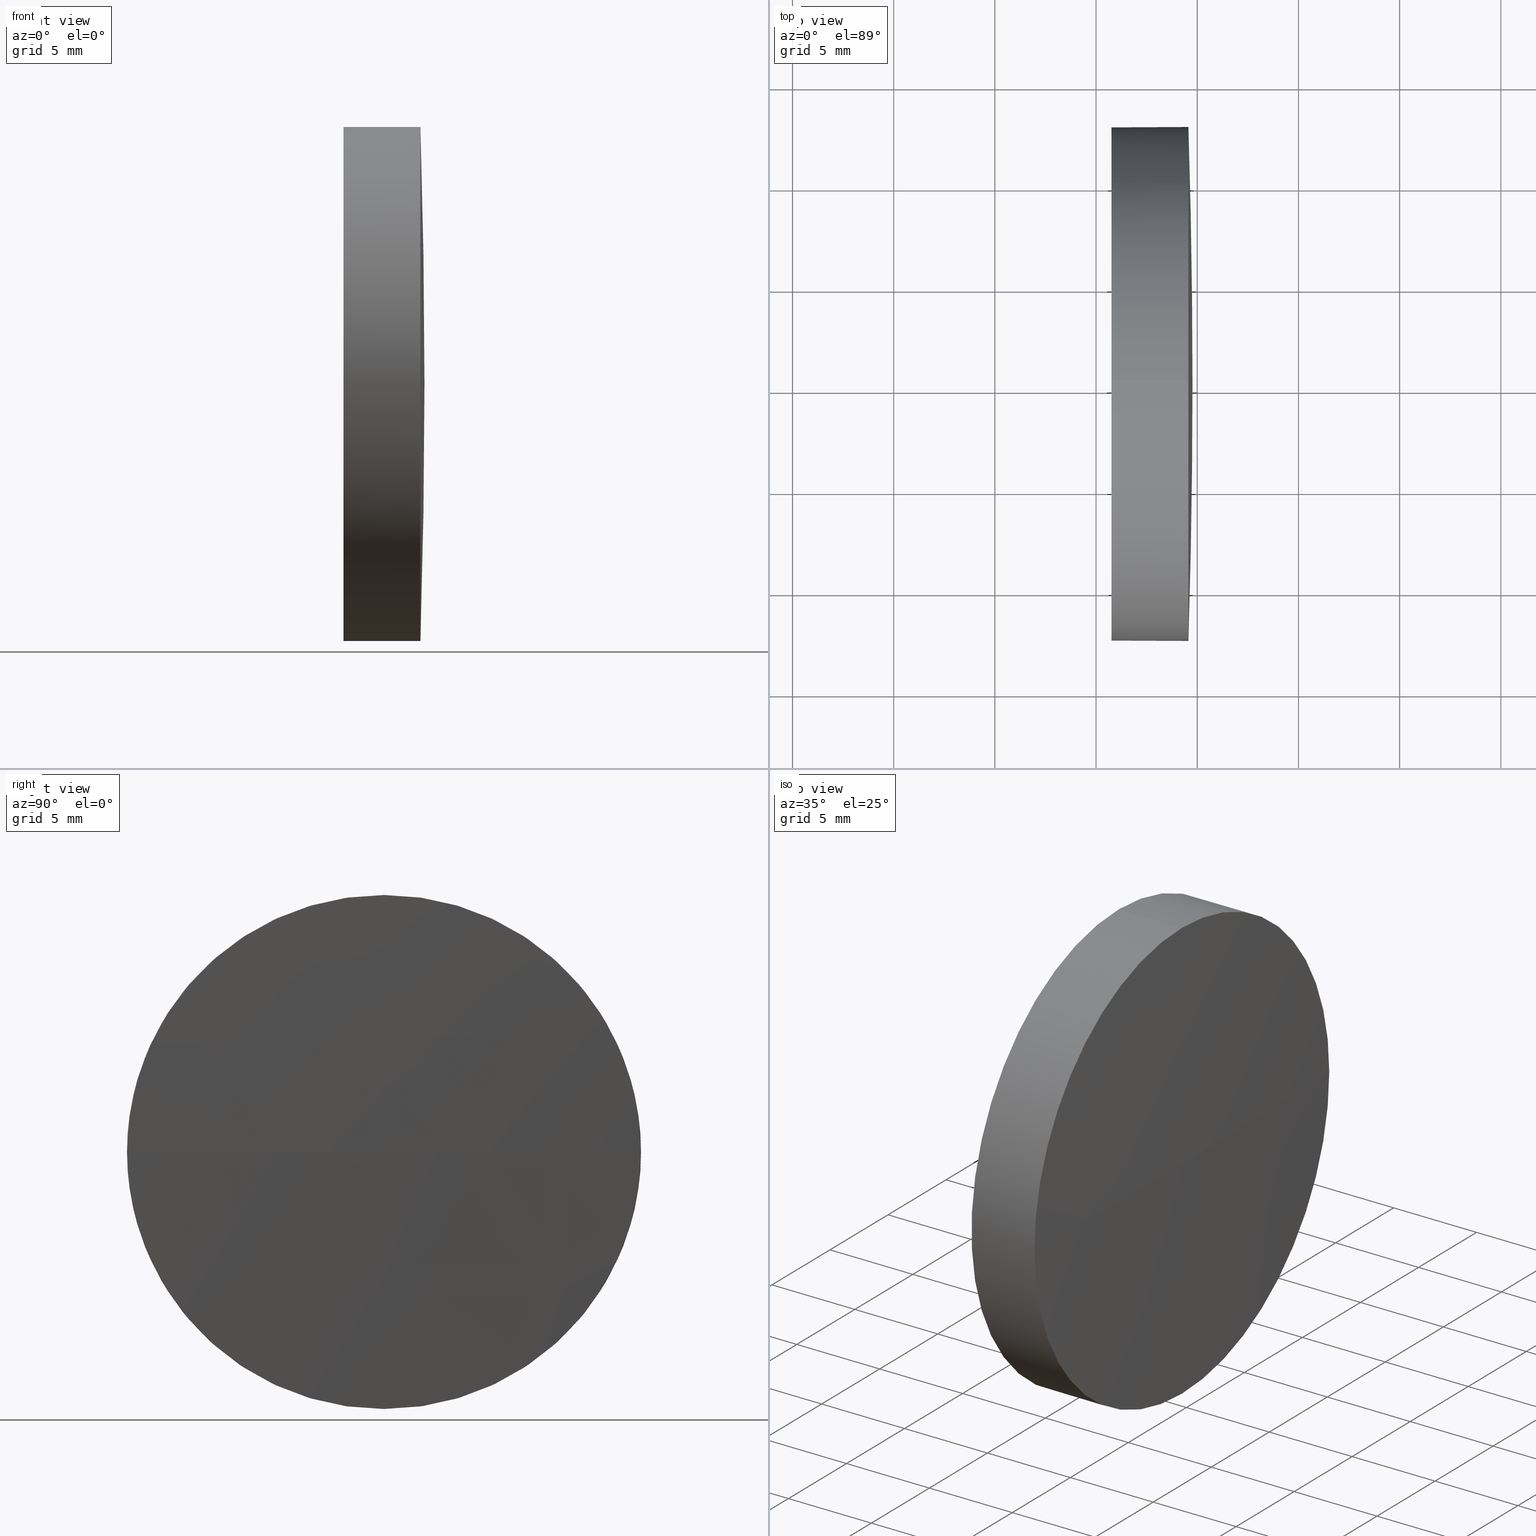
[diagram: canonical four-view strip — front | top / right | iso, engineering-drawing reading convention]
A machine part, canonical four-view strip (front | top / right | iso — engineering-drawing reading convention). The complete STEP part file that produces these views, byte-faithful:
ISO-10303-21;
HEADER;
FILE_DESCRIPTION (( 'STEP AP214' ),
    '1' );
FILE_NAME ('100519.STEP',
    '2019-06-13T02:14:47',
    ( '' ),
    ( '' ),
    'SwSTEP 2.0',
    'SolidWorks 2016',
    '' );
FILE_SCHEMA (( 'AUTOMOTIVE_DESIGN' ));
ENDSEC;

DATA;
#1 = FACE_OUTER_BOUND ( 'NONE', #17, .T. ) ;
#2 = ORIENTED_EDGE ( 'NONE', *, *, #42, .T. ) ;
#3 = VERTEX_POINT ( 'NONE', #48 ) ;
#4 = SHAPE_DEFINITION_REPRESENTATION ( #144, #142 ) ;
#5 = UNCERTAINTY_MEASURE_WITH_UNIT (LENGTH_MEASURE( 1.000000000000000100E-005 ), #15, 'distance_accuracy_value', 'NONE');
#6 = ORIENTED_EDGE ( 'NONE', *, *, #71, .F. ) ;
#7 = EDGE_CURVE ( 'NONE', #165, #3, #10, .T. ) ;
#8 = DIRECTION ( 'NONE',  ( 0.0000000000000000000, 0.0000000000000000000, 1.000000000000000000 ) ) ;
#9 = FILL_AREA_STYLE_COLOUR ( '', #97 ) ;
#10 = CIRCLE ( 'NONE', #179, 12.70000000000000300 ) ;
#11 = APPLICATION_PROTOCOL_DEFINITION ( 'draft international standard', 'automotive_design', 1998, #101 ) ;
#12 = ORIENTED_EDGE ( 'NONE', *, *, #96, .F. ) ;
#13 = SURFACE_STYLE_USAGE ( .BOTH. , #160 ) ;
#14 = EDGE_LOOP ( 'NONE', ( #69, #184, #126, #66 ) ) ;
#15 =( LENGTH_UNIT ( ) NAMED_UNIT ( * ) SI_UNIT ( .MILLI., .METRE. ) );
#16 = COLOUR_RGB ( '',1.000000000000000000, 1.000000000000000000, 1.000000000000000000 ) ;
#17 = EDGE_LOOP ( 'NONE', ( #132, #178, #114, #60, #51 ) ) ;
#18 = VERTEX_POINT ( 'NONE', #138 ) ;
#19 = AXIS2_PLACEMENT_3D ( 'NONE', #123, #135, #166 ) ;
#20 = FACE_OUTER_BOUND ( 'NONE', #29, .T. ) ;
#21 = ADVANCED_FACE ( 'NONE', ( #20 ), #38, .T. ) ;
#22 = PRODUCT ( '100519', '100519', '', ( #79 ) ) ;
#23 = DIRECTION ( 'NONE',  ( 0.0000000000000000000, 0.0000000000000000000, 1.000000000000000000 ) ) ;
#24 = FACE_OUTER_BOUND ( 'NONE', #49, .T. ) ;
#25 = FILL_AREA_STYLE ('',( #9 ) ) ;
#26 = FILL_AREA_STYLE ('',( #112 ) ) ;
#27 = CARTESIAN_POINT ( 'NONE',  ( 110.1653732284884500, 65.23355492641219700, 0.0000000000000000000 ) ) ;
#28 = DIRECTION ( 'NONE',  ( 0.0000000000000000000, 0.0000000000000000000, 1.000000000000000000 ) ) ;
#29 = EDGE_LOOP ( 'NONE', ( #12, #2, #95, #104, #6 ) ) ;
#30 = DIRECTION ( 'NONE',  ( -1.000000000000000000, -0.0000000000000000000, -0.0000000000000000000 ) ) ;
#31 = DIRECTION ( 'NONE',  ( -1.000000000000000000, -0.0000000000000000000, -0.0000000000000000000 ) ) ;
#32 = DIRECTION ( 'NONE',  ( 0.0000000000000000000, 0.0000000000000000000, 1.000000000000000000 ) ) ;
#33 = ORIENTED_EDGE ( 'NONE', *, *, #151, .T. ) ;
#34 = VERTEX_POINT ( 'NONE', #182 ) ;
#35 = MECHANICAL_DESIGN_GEOMETRIC_PRESENTATION_REPRESENTATION (  '', ( #99 ), #47 ) ;
#36 = SURFACE_STYLE_FILL_AREA ( #26 ) ;
#37 = CLOSED_SHELL ( 'NONE', ( #94, #155, #39, #21, #92 ) ) ;
#38 = CYLINDRICAL_SURFACE ( 'NONE', #19, 12.70000000000000300 ) ;
#39 = ADVANCED_FACE ( 'NONE', ( #152 ), #134, .T. ) ;
#40 = UNCERTAINTY_MEASURE_WITH_UNIT (LENGTH_MEASURE( 1.000000000000000100E-005 ), #74, 'distance_accuracy_value', 'NONE');
#41 = VERTEX_POINT ( 'NONE', #136 ) ;
#42 = EDGE_CURVE ( 'NONE', #34, #165, #146, .T. ) ;
#43 = PRODUCT_DEFINITION_CONTEXT ( 'detailed design', #145, 'design' ) ;
#44 = DIRECTION ( 'NONE',  ( -1.000000000000000000, -0.0000000000000000000, -0.0000000000000000000 ) ) ;
#45 = EDGE_CURVE ( 'NONE', #3, #154, #54, .T. ) ;
#46 = CARTESIAN_POINT ( 'NONE',  ( 119.5645554762011900, 65.23355492641219700, 0.0000000000000000000 ) ) ;
#47 =( GEOMETRIC_REPRESENTATION_CONTEXT ( 3 ) GLOBAL_UNCERTAINTY_ASSIGNED_CONTEXT ( ( #40 ) ) GLOBAL_UNIT_ASSIGNED_CONTEXT ( ( #74, #185, #98 ) ) REPRESENTATION_CONTEXT ( 'NONE', 'WORKASPACE' ) );
#48 = CARTESIAN_POINT ( 'NONE',  ( 119.5645554762011900, 65.23355492641219700, 12.70000000000000300 ) ) ;
#49 = EDGE_LOOP ( 'NONE', ( #55, #33, #91, #73 ) ) ;
#50 = DIRECTION ( 'NONE',  ( 0.0000000000000000000, 0.0000000000000000000, 1.000000000000000000 ) ) ;
#51 = ORIENTED_EDGE ( 'NONE', *, *, #80, .T. ) ;
#52 = AXIS2_PLACEMENT_3D ( 'NONE', #27, #87, #50 ) ;
#53 = CARTESIAN_POINT ( 'NONE',  ( -283.5604445238075800, 65.23355492641265100, 0.0000000000000000000 ) ) ;
#54 = LINE ( 'NONE', #108, #65 ) ;
#55 = ORIENTED_EDGE ( 'NONE', *, *, #167, .F. ) ;
#56 =( LENGTH_UNIT ( ) NAMED_UNIT ( * ) SI_UNIT ( .MILLI., .METRE. ) );
#57 = DIRECTION ( 'NONE',  ( 0.0000000000000000000, 0.0000000000000000000, -1.000000000000000000 ) ) ;
#58 = MANIFOLD_SOLID_BREP ( '��ת1', #37 ) ;
#59 = CARTESIAN_POINT ( 'NONE',  ( 115.7645554762012000, 65.23355492641219700, 0.0000000000000000000 ) ) ;
#60 = ORIENTED_EDGE ( 'NONE', *, *, #45, .F. ) ;
#61 = DIRECTION ( 'NONE',  ( 0.0000000000000000000, -1.000000000000000000, 0.0000000000000000000 ) ) ;
#62 = CIRCLE ( 'NONE', #89, 12.70000000000000300 ) ;
#63 = DIRECTION ( 'NONE',  ( 1.000000000000000000, 0.0000000000000000000, 0.0000000000000000000 ) ) ;
#64 =( GEOMETRIC_REPRESENTATION_CONTEXT ( 3 ) GLOBAL_UNCERTAINTY_ASSIGNED_CONTEXT ( ( #5 ) ) GLOBAL_UNIT_ASSIGNED_CONTEXT ( ( #15, #119, #147 ) ) REPRESENTATION_CONTEXT ( 'NONE', 'WORKASPACE' ) );
#65 = VECTOR ( 'NONE', #44, 1000.000000000000000 ) ;
#66 = ORIENTED_EDGE ( 'NONE', *, *, #163, .F. ) ;
#67 = ORIENTED_EDGE ( 'NONE', *, *, #71, .T. ) ;
#68 = ORIENTED_EDGE ( 'NONE', *, *, #70, .T. ) ;
#69 = ORIENTED_EDGE ( 'NONE', *, *, #151, .F. ) ;
#70 = EDGE_CURVE ( 'NONE', #154, #133, #90, .T. ) ;
#71 = EDGE_CURVE ( 'NONE', #133, #154, #117, .T. ) ;
#72 = LINE ( 'NONE', #77, #109 ) ;
#73 = ORIENTED_EDGE ( 'NONE', *, *, #7, .F. ) ;
#74 =( LENGTH_UNIT ( ) NAMED_UNIT ( * ) SI_UNIT ( .MILLI., .METRE. ) );
#75 =( NAMED_UNIT ( * ) SI_UNIT ( $, .STERADIAN. ) SOLID_ANGLE_UNIT ( ) );
#76 = CARTESIAN_POINT ( 'NONE',  ( -283.5604445238075800, 65.23355492641265100, 0.0000000000000000000 ) ) ;
#77 = CARTESIAN_POINT ( 'NONE',  ( 110.1653732284884500, 65.23355492641219700, -12.70000000000000300 ) ) ;
#78 = PRODUCT_RELATED_PRODUCT_CATEGORY ( 'part', '', ( #22 ) ) ;
#79 = PRODUCT_CONTEXT ( 'NONE', #101, 'mechanical' ) ;
#80 = EDGE_CURVE ( 'NONE', #3, #18, #174, .T. ) ;
#81 = AXIS2_PLACEMENT_3D ( 'NONE', #110, #183, #168 ) ;
#82 = PRESENTATION_LAYER_ASSIGNMENT (  '', '', ( #120 ) ) ;
#83 = PLANE ( 'NONE',  #153 ) ;
#84 = SURFACE_SIDE_STYLE ('',( #105 ) ) ;
#85 = DIRECTION ( 'NONE',  ( -1.000000000000000000, 0.0000000000000000000, 0.0000000000000000000 ) ) ;
#86 = DIRECTION ( 'NONE',  ( 0.0000000000000000000, 0.0000000000000000000, 1.000000000000000000 ) ) ;
#87 = DIRECTION ( 'NONE',  ( -1.000000000000000000, -0.0000000000000000000, -0.0000000000000000000 ) ) ;
#88 = CARTESIAN_POINT ( 'NONE',  ( -283.5604445238075800, 65.23355492641265100, 0.0000000000000000000 ) ) ;
#89 = AXIS2_PLACEMENT_3D ( 'NONE', #103, #172, #128 ) ;
#90 = CIRCLE ( 'NONE', #118, 12.70000000000000300 ) ;
#91 = ORIENTED_EDGE ( 'NONE', *, *, #80, .F. ) ;
#92 = ADVANCED_FACE ( 'NONE', ( #122 ), #83, .F. ) ;
#93 = CIRCLE ( 'NONE', #100, 403.3250000000088000 ) ;
#94 = ADVANCED_FACE ( 'NONE', ( #1 ), #181, .T. ) ;
#95 = ORIENTED_EDGE ( 'NONE', *, *, #7, .T. ) ;
#96 = EDGE_CURVE ( 'NONE', #34, #133, #72, .T. ) ;
#97 = COLOUR_RGB ( '',1.000000000000000000, 1.000000000000000000, 1.000000000000000000 ) ;
#98 =( NAMED_UNIT ( * ) SI_UNIT ( $, .STERADIAN. ) SOLID_ANGLE_UNIT ( ) );
#99 = STYLED_ITEM ( 'NONE', ( #169 ), #58 ) ;
#100 = AXIS2_PLACEMENT_3D ( 'NONE', #88, #115, #85 ) ;
#101 = APPLICATION_CONTEXT ( 'automotive_design' ) ;
#102 = CARTESIAN_POINT ( 'NONE',  ( 115.7645554762012000, 65.23355492641219700, 0.0000000000000000000 ) ) ;
#103 = CARTESIAN_POINT ( 'NONE',  ( 119.5645554762011900, 65.23355492641219700, 0.0000000000000000000 ) ) ;
#104 = ORIENTED_EDGE ( 'NONE', *, *, #45, .T. ) ;
#105 = SURFACE_STYLE_FILL_AREA ( #25 ) ;
#106 =( GEOMETRIC_REPRESENTATION_CONTEXT ( 3 ) GLOBAL_UNCERTAINTY_ASSIGNED_CONTEXT ( ( #161 ) ) GLOBAL_UNIT_ASSIGNED_CONTEXT ( ( #56, #158, #75 ) ) REPRESENTATION_CONTEXT ( 'NONE', 'WORKASPACE' ) );
#107 = DIRECTION ( 'NONE',  ( 0.0000000000000000000, -1.000000000000000000, 0.0000000000000000000 ) ) ;
#108 = CARTESIAN_POINT ( 'NONE',  ( 110.1653732284884500, 65.23355492641219700, 12.70000000000000300 ) ) ;
#109 = VECTOR ( 'NONE', #173, 1000.000000000000000 ) ;
#110 = CARTESIAN_POINT ( 'NONE',  ( 119.5645554762011900, 65.23355492641219700, 0.0000000000000000000 ) ) ;
#111 = SPHERICAL_SURFACE ( 'NONE', #159, 403.3250000000087400 ) ;
#112 = FILL_AREA_STYLE_COLOUR ( '', #16 ) ;
#113 = CARTESIAN_POINT ( 'NONE',  ( 119.5645554762011900, 65.23355492641219700, 0.0000000000000000000 ) ) ;
#114 = ORIENTED_EDGE ( 'NONE', *, *, #70, .F. ) ;
#115 = DIRECTION ( 'NONE',  ( 0.0000000000000000000, 0.0000000000000000000, -1.000000000000000000 ) ) ;
#116 = DIRECTION ( 'NONE',  ( 0.0000000000000000000, 0.0000000000000000000, 1.000000000000000000 ) ) ;
#117 = CIRCLE ( 'NONE', #148, 12.70000000000000300 ) ;
#118 = AXIS2_PLACEMENT_3D ( 'NONE', #141, #30, #116 ) ;
#119 =( NAMED_UNIT ( * ) PLANE_ANGLE_UNIT ( ) SI_UNIT ( $, .RADIAN. ) );
#120 = STYLED_ITEM ( 'NONE', ( #149 ), #142 ) ;
#121 = PRODUCT_DEFINITION_FORMATION_WITH_SPECIFIED_SOURCE ( '�κ�', '', #22, .NOT_KNOWN. ) ;
#122 = FACE_OUTER_BOUND ( 'NONE', #130, .T. ) ;
#123 = CARTESIAN_POINT ( 'NONE',  ( 110.1653732284884500, 65.23355492641219700, 0.0000000000000000000 ) ) ;
#124 = AXIS2_PLACEMENT_3D ( 'NONE', #53, #8, #107 ) ;
#125 = MECHANICAL_DESIGN_GEOMETRIC_PRESENTATION_REPRESENTATION (  '', ( #120 ), #64 ) ;
#126 = ORIENTED_EDGE ( 'NONE', *, *, #42, .F. ) ;
#127 = CARTESIAN_POINT ( 'NONE',  ( 119.5645554762012400, 52.53355492641280500, 0.0000000000000000000 ) ) ;
#128 = DIRECTION ( 'NONE',  ( 0.0000000000000000000, 0.0000000000000000000, 1.000000000000000000 ) ) ;
#129 = DIRECTION ( 'NONE',  ( -1.000000000000000000, -0.0000000000000000000, -0.0000000000000000000 ) ) ;
#130 = EDGE_LOOP ( 'NONE', ( #68, #67 ) ) ;
#131 = CARTESIAN_POINT ( 'NONE',  ( -283.5604445238075800, 65.23355492641265100, 0.0000000000000000000 ) ) ;
#132 = ORIENTED_EDGE ( 'NONE', *, *, #163, .T. ) ;
#133 = VERTEX_POINT ( 'NONE', #140 ) ;
#134 = SPHERICAL_SURFACE ( 'NONE', #124, 403.3250000000087400 ) ;
#135 = DIRECTION ( 'NONE',  ( -1.000000000000000000, -0.0000000000000000000, -0.0000000000000000000 ) ) ;
#136 = CARTESIAN_POINT ( 'NONE',  ( 119.7645554762011800, 65.23355492641262300, 0.0000000000000000000 ) ) ;
#137 = AXIS2_PLACEMENT_3D ( 'NONE', #113, #129, #139 ) ;
#138 = CARTESIAN_POINT ( 'NONE',  ( 119.5645554762012400, 77.93355492641204300, 1.555301434917064100E-015 ) ) ;
#139 = DIRECTION ( 'NONE',  ( 0.0000000000000000000, 0.0000000000000000000, 1.000000000000000000 ) ) ;
#140 = CARTESIAN_POINT ( 'NONE',  ( 115.7645554762012000, 65.23355492641219700, -12.70000000000000300 ) ) ;
#141 = CARTESIAN_POINT ( 'NONE',  ( 115.7645554762012000, 65.23355492641219700, 0.0000000000000000000 ) ) ;
#142 = ADVANCED_BREP_SHAPE_REPRESENTATION ( '100519', ( #58, #176 ), #106 ) ;
#143 = DIRECTION ( 'NONE',  ( 0.0000000000000000000, -1.224646799147353200E-016, 1.000000000000000000 ) ) ;
#144 = PRODUCT_DEFINITION_SHAPE ( 'NONE', 'NONE',  #164 ) ;
#145 = APPLICATION_CONTEXT ( 'automotive_design' ) ;
#146 = CIRCLE ( 'NONE', #81, 12.70000000000000300 ) ;
#147 =( NAMED_UNIT ( * ) SI_UNIT ( $, .STERADIAN. ) SOLID_ANGLE_UNIT ( ) );
#148 = AXIS2_PLACEMENT_3D ( 'NONE', #59, #31, #86 ) ;
#149 = PRESENTATION_STYLE_ASSIGNMENT (( #13 ) ) ;
#150 = AXIS2_PLACEMENT_3D ( 'NONE', #76, #143, #170 ) ;
#151 = EDGE_CURVE ( 'NONE', #41, #18, #175, .T. ) ;
#152 = FACE_OUTER_BOUND ( 'NONE', #14, .T. ) ;
#153 = AXIS2_PLACEMENT_3D ( 'NONE', #102, #162, #57 ) ;
#154 = VERTEX_POINT ( 'NONE', #171 ) ;
#155 = ADVANCED_FACE ( 'NONE', ( #24 ), #111, .T. ) ;
#156 = DIRECTION ( 'NONE',  ( -1.000000000000000000, -0.0000000000000000000, -0.0000000000000000000 ) ) ;
#157 = SURFACE_STYLE_USAGE ( .BOTH. , #84 ) ;
#158 =( NAMED_UNIT ( * ) PLANE_ANGLE_UNIT ( ) SI_UNIT ( $, .RADIAN. ) );
#159 = AXIS2_PLACEMENT_3D ( 'NONE', #131, #28, #61 ) ;
#160 = SURFACE_SIDE_STYLE ('',( #36 ) ) ;
#161 = UNCERTAINTY_MEASURE_WITH_UNIT (LENGTH_MEASURE( 1.000000000000000100E-005 ), #56, 'distance_accuracy_value', 'NONE');
#162 = DIRECTION ( 'NONE',  ( 1.000000000000000000, 0.0000000000000000000, 0.0000000000000000000 ) ) ;
#163 = EDGE_CURVE ( 'NONE', #18, #34, #62, .T. ) ;
#164 = PRODUCT_DEFINITION ( 'δ֪', '', #121, #43 ) ;
#165 = VERTEX_POINT ( 'NONE', #127 ) ;
#166 = DIRECTION ( 'NONE',  ( 0.0000000000000000000, 0.0000000000000000000, 1.000000000000000000 ) ) ;
#167 = EDGE_CURVE ( 'NONE', #41, #165, #93, .T. ) ;
#168 = DIRECTION ( 'NONE',  ( 0.0000000000000000000, 0.0000000000000000000, 1.000000000000000000 ) ) ;
#169 = PRESENTATION_STYLE_ASSIGNMENT (( #157 ) ) ;
#170 = DIRECTION ( 'NONE',  ( 0.0000000000000000000, -1.000000000000000000, -1.224646799147353500E-016 ) ) ;
#171 = CARTESIAN_POINT ( 'NONE',  ( 115.7645554762012000, 65.23355492641219700, 12.70000000000000300 ) ) ;
#172 = DIRECTION ( 'NONE',  ( -1.000000000000000000, -0.0000000000000000000, -0.0000000000000000000 ) ) ;
#173 = DIRECTION ( 'NONE',  ( -1.000000000000000000, -0.0000000000000000000, -0.0000000000000000000 ) ) ;
#174 = CIRCLE ( 'NONE', #137, 12.70000000000000300 ) ;
#175 = CIRCLE ( 'NONE', #150, 403.3250000000087400 ) ;
#176 = AXIS2_PLACEMENT_3D ( 'NONE', #186, #32, #63 ) ;
#177 = APPLICATION_PROTOCOL_DEFINITION ( 'draft international standard', 'automotive_design', 1998, #145 ) ;
#178 = ORIENTED_EDGE ( 'NONE', *, *, #96, .T. ) ;
#179 = AXIS2_PLACEMENT_3D ( 'NONE', #46, #156, #23 ) ;
#180 = PRESENTATION_LAYER_ASSIGNMENT (  '', '', ( #99 ) ) ;
#181 = CYLINDRICAL_SURFACE ( 'NONE', #52, 12.70000000000000300 ) ;
#182 = CARTESIAN_POINT ( 'NONE',  ( 119.5645554762011900, 65.23355492641219700, -12.70000000000000300 ) ) ;
#183 = DIRECTION ( 'NONE',  ( -1.000000000000000000, -0.0000000000000000000, -0.0000000000000000000 ) ) ;
#184 = ORIENTED_EDGE ( 'NONE', *, *, #167, .T. ) ;
#185 =( NAMED_UNIT ( * ) PLANE_ANGLE_UNIT ( ) SI_UNIT ( $, .RADIAN. ) );
#186 = CARTESIAN_POINT ( 'NONE',  ( 0.0000000000000000000, 0.0000000000000000000, 0.0000000000000000000 ) ) ;
ENDSEC;
END-ISO-10303-21;
